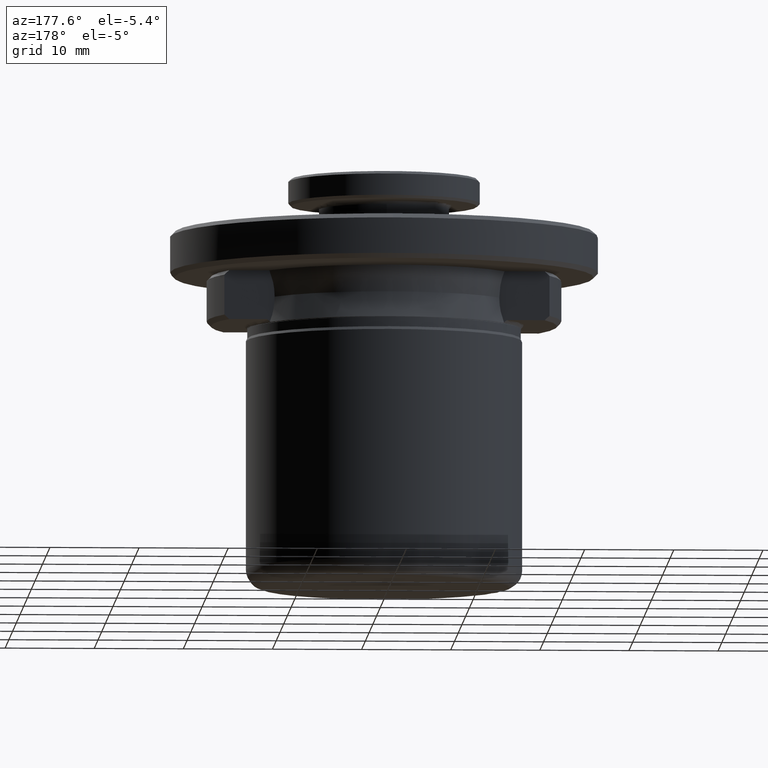
[diagram: clean part render]
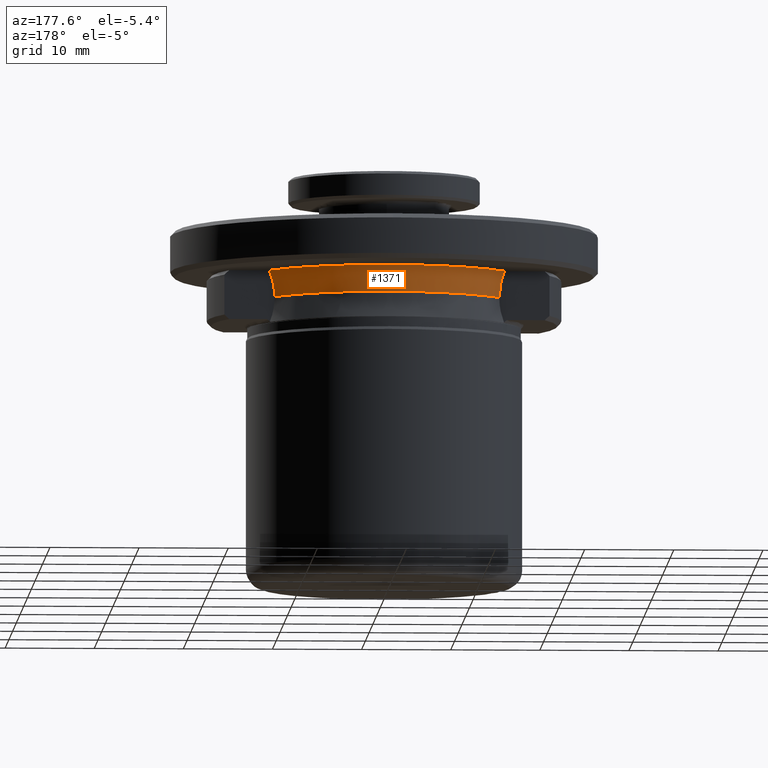
[diagram: same view with one face highlighted and labeled with its STEP entity id]
A machine part, auxiliary view. The second image highlights one B-rep face of the part: STEP entity #1371.
In plain terms, the highlighted face is a freeform B-spline surface patch.
Its self-contained STEP definition (entity closure, byte-faithful):
#31 = CARTESIAN_POINT ( 'NONE',  ( -12.85255390096366700, 7.950000000000003700, 6.487167108543963500 ) ) ;
#96 = CARTESIAN_POINT ( 'NONE',  ( -13.06160257300000200, 7.569086716999999400, 7.038194950000000300 ) ) ;
#173 = CARTESIAN_POINT ( 'NONE',  ( -13.19009165193885900, 7.950000000000005500, 7.438485615027160800 ) ) ;
#213 = CARTESIAN_POINT ( 'NONE',  ( 0.0000000000000000000, 0.0000000000000000000, 7.438485615054234200 ) ) ;
#235 = CARTESIAN_POINT ( 'NONE',  ( 12.93071184499999900, 7.493236662000000200, 3.579984865000000100 ) ) ;
#247 = CARTESIAN_POINT ( 'NONE',  ( 6.867173271999999600, 19.85324952300000200, 8.593484004000002200 ) ) ;
#266 = ORIENTED_EDGE ( 'NONE', *, *, #1908, .T. ) ;
#308 = EDGE_LOOP ( 'NONE', ( #1548, #967, #266, #1161 ) ) ;
#378 = DIRECTION ( 'NONE',  ( -1.000000000000000000, 0.0000000000000000000, 0.0000000000000000000 ) ) ;
#402 = CARTESIAN_POINT ( 'NONE',  ( -6.456389356999999900, 18.66565817500000100, 3.579984865000000600 ) ) ;
#410 = CARTESIAN_POINT ( 'NONE',  ( -13.75342066000000000, 7.969989367000000200, 8.593484004000002200 ) ) ;
#430 = CARTESIAN_POINT ( 'NONE',  ( 13.19009165172269600, 7.950000000000000200, 7.438485615054234200 ) ) ;
#434 =( BOUNDED_SURFACE ( )  B_SPLINE_SURFACE ( 3, 3, ( 
 ( #235, #1134, #402, #1420 ),
 ( #545, #1573, #693, #1717 ),
 ( #835, #1870, #988, #96 ),
 ( #1141, #247, #1282, #410 ) ),
 .UNSPECIFIED., .F., .F., .F. ) 
 B_SPLINE_SURFACE_WITH_KNOTS ( ( 4, 4 ),
 ( 4, 4 ),
 ( 0.0000000000000000000, 1.000000000000000000 ),
 ( 0.0000000000000000000, 1.000000000000000000 ),
 .UNSPECIFIED. ) 
 GEOMETRIC_REPRESENTATION_ITEM ( )  RATIONAL_B_SPLINE_SURFACE ( (
 ( 1.000000000000000000, 0.6675925262800090900, 0.6675925262800090900, 1.000000000000000000),
 ( 0.9726495440996750800, 0.6493335663306010200, 0.6493335663306010200, 0.9726495440996750800),
 ( 0.9726495440996750800, 0.6493335663306010200, 0.6493335663306010200, 0.9726495440996750800),
 ( 1.000000000000000000, 0.6675925262800090900, 0.6675925262800090900, 1.000000000000000000) ) ) 
 REPRESENTATION_ITEM ( '' )  SURFACE ( )  );
#484 = CARTESIAN_POINT ( 'NONE',  ( -12.60188477957813200, 7.950000000000000200, 4.478485616234512400 ) ) ;
#511 = DIRECTION ( 'NONE',  ( -0.0000000000000000000, -0.0000000000000000000, -1.000000000000000000 ) ) ;
#545 = CARTESIAN_POINT ( 'NONE',  ( 12.77965490400000300, 7.405700459999999400, 5.320036143999999500 ) ) ;
#693 = CARTESIAN_POINT ( 'NONE',  ( -6.380965633999999800, 18.44760542900000300, 5.320036143999999500 ) ) ;
#718 = CARTESIAN_POINT ( 'NONE',  ( 12.65255785788090700, 7.949999999999983300, 5.488997398283415500 ) ) ;
#743 = VERTEX_POINT ( 'NONE', #1187 ) ;
#826 = CARTESIAN_POINT ( 'NONE',  ( -13.19009165193885900, 7.950000000000005500, 7.438485615027160800 ) ) ;
#835 = CARTESIAN_POINT ( 'NONE',  ( 13.06160257300000200, 7.569086716999999400, 7.038194950000000300 ) ) ;
#857 = CARTESIAN_POINT ( 'NONE',  ( 12.60188477964878700, 7.950000000000000200, 4.478485616234513200 ) ) ;
#915 = CARTESIAN_POINT ( 'NONE',  ( -12.65280249184274200, 7.950000000000003700, 5.491855283280165700 ) ) ;
#955 = CARTESIAN_POINT ( 'NONE',  ( 12.60188477964878700, 7.950000000000000200, 4.478485616234513200 ) ) ;
#959 = CIRCLE ( 'NONE', #1430, 14.89999999993788300 ) ;
#967 = ORIENTED_EDGE ( 'NONE', *, *, #991, .T. ) ;
#980 = AXIS2_PLACEMENT_3D ( 'NONE', #213, #1251, #378 ) ;
#983 = CARTESIAN_POINT ( 'NONE',  ( 13.19009165172269600, 7.950000000000000200, 7.438485615054234200 ) ) ;
#988 = CARTESIAN_POINT ( 'NONE',  ( -6.521743957000000000, 18.85460071800000400, 7.038194949999999400 ) ) ;
#991 = EDGE_CURVE ( 'NONE', #1307, #1361, #1485, .T. ) ;
#1029 = FACE_OUTER_BOUND ( 'NONE', #308, .T. ) ;
#1073 = CARTESIAN_POINT ( 'NONE',  ( -12.99950658810164200, 7.950000000000002000, 6.969791976197886800 ) ) ;
#1119 = EDGE_CURVE ( 'NONE', #743, #1307, #1707, .T. ) ;
#1134 = CARTESIAN_POINT ( 'NONE',  ( 6.456389356999999900, 18.66565817500000100, 3.579984865000000600 ) ) ;
#1141 = CARTESIAN_POINT ( 'NONE',  ( 13.75342066000000000, 7.969989367000000200, 8.593484004000002200 ) ) ;
#1161 = ORIENTED_EDGE ( 'NONE', *, *, #1218, .F. ) ;
#1187 = CARTESIAN_POINT ( 'NONE',  ( -12.60188477957813200, 7.950000000000000200, 4.478485616234512400 ) ) ;
#1218 = EDGE_CURVE ( 'NONE', #743, #1654, #959, .T. ) ;
#1251 = DIRECTION ( 'NONE',  ( -0.0000000000000000000, -0.0000000000000000000, -1.000000000000000000 ) ) ;
#1272 = B_SPLINE_CURVE_WITH_KNOTS ( 'NONE', 3,
 ( #430, #1294, #1593, #718, #1741, #857 ),
 .UNSPECIFIED., .F., .F.,
 ( 4, 2, 4 ),
 ( 0.0003645973361883915600, 0.001884080257312041900, 0.003403563178435692500 ),
 .UNSPECIFIED. ) ;
#1282 = CARTESIAN_POINT ( 'NONE',  ( -6.867173271999999600, 19.85324952300000200, 8.593484004000002200 ) ) ;
#1294 = CARTESIAN_POINT ( 'NONE',  ( 12.99913754613343300, 7.950000000000000200, 6.968884414918229600 ) ) ;
#1307 = VERTEX_POINT ( 'NONE', #826 ) ;
#1361 = VERTEX_POINT ( 'NONE', #983 ) ;
#1371 = ADVANCED_FACE ( 'NONE', ( #1029 ), #434, .F. ) ;
#1383 = CARTESIAN_POINT ( 'NONE',  ( -5.204170427930421300E-015, -2.532479434491641300E-011, 4.478485616159577600 ) ) ;
#1420 = CARTESIAN_POINT ( 'NONE',  ( -12.93071184499999900, 7.493236662000000200, 3.579984865000000100 ) ) ;
#1430 = AXIS2_PLACEMENT_3D ( 'NONE', #1383, #511, #1533 ) ;
#1485 = CIRCLE ( 'NONE', #980, 15.40068238036369400 ) ;
#1504 = CARTESIAN_POINT ( 'NONE',  ( -12.60188477980667300, 7.950000000000000200, 4.986887970936673600 ) ) ;
#1533 = DIRECTION ( 'NONE',  ( -1.000000000000000000, 0.0000000000000000000, 0.0000000000000000000 ) ) ;
#1548 = ORIENTED_EDGE ( 'NONE', *, *, #1119, .T. ) ;
#1573 = CARTESIAN_POINT ( 'NONE',  ( 6.380965633999999800, 18.44760542900000300, 5.320036143999999500 ) ) ;
#1593 = CARTESIAN_POINT ( 'NONE',  ( 12.85084947184607400, 7.949999999999985100, 6.480297289639564100 ) ) ;
#1654 = VERTEX_POINT ( 'NONE', #955 ) ;
#1707 = B_SPLINE_CURVE_WITH_KNOTS ( 'NONE', 3,
 ( #484, #1504, #915, #31, #1073, #173 ),
 .UNSPECIFIED., .F., .F.,
 ( 4, 2, 4 ),
 ( 0.0000000000000000000, 0.001518643679664138400, 0.003037287359328276800 ),
 .UNSPECIFIED. ) ;
#1717 = CARTESIAN_POINT ( 'NONE',  ( -12.77965490400000300, 7.405700459999999400, 5.320036143999999500 ) ) ;
#1741 = CARTESIAN_POINT ( 'NONE',  ( 12.60188477980673700, 7.949999999999996600, 4.987038944249323300 ) ) ;
#1870 = CARTESIAN_POINT ( 'NONE',  ( 6.521743957000000000, 18.85460071800000400, 7.038194949999999400 ) ) ;
#1908 = EDGE_CURVE ( 'NONE', #1361, #1654, #1272, .T. ) ;